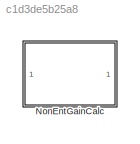
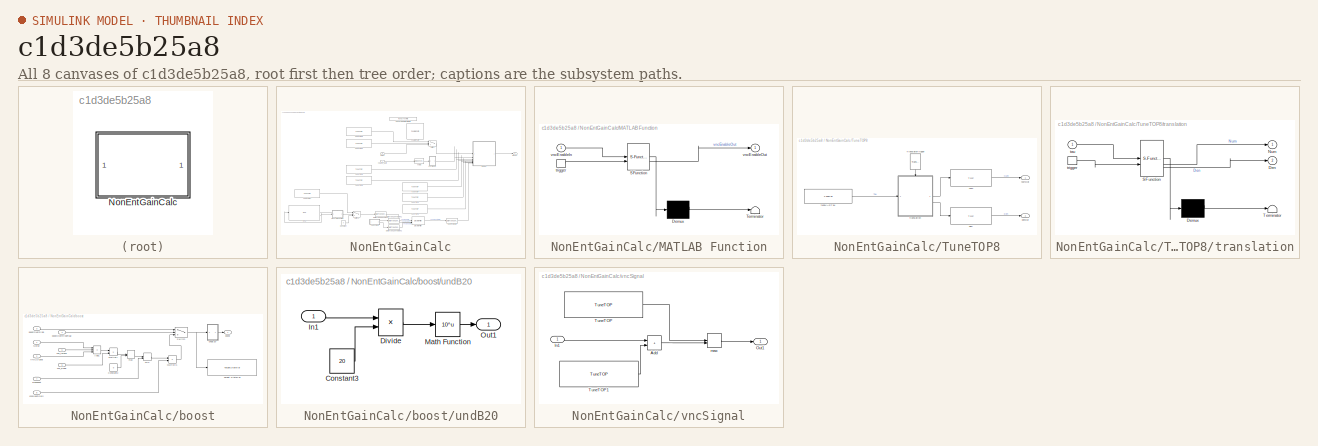
[diagram: thumbnail index - all 8 canvases of the model, root first then tree order]
MODEL slx_c1d3de5b25a8
KIND library
CONFIG AbsTol = auto
CONFIG EnableMultiTasking = off
CONFIG FixedStep = auto
CONFIG MaxStep = auto
CONFIG MinStep = auto
CONFIG RelTol = 1e-3
CONFIG SampleTimeConstraint = Unconstrained
CONFIG SolverName = VariableStepAuto
CONFIG StartTime = 0.0
CONFIG StopTime = 10.0
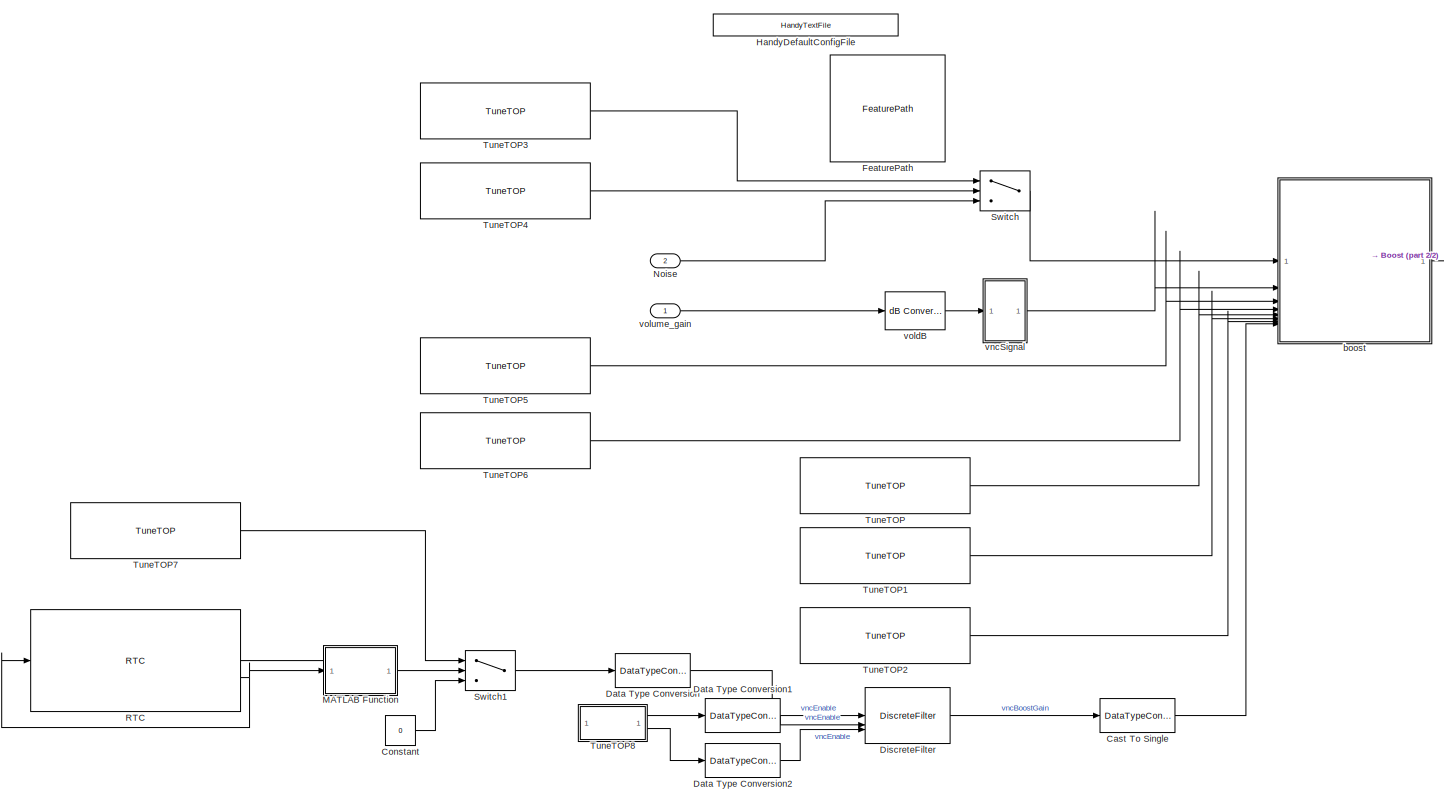
[diagram: NonEntGainCalc - part 1/2, most of the canvas]
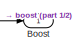
[diagram: NonEntGainCalc - part 2/2, middle right region]
BLOCK [SubSystem] NonEntGainCalc
BLOCK [Outport] NonEntGainCalc/Boost
  VectorParamsAs1DForOutWhenUnconnected = off
BLOCK [DataTypeConversion] NonEntGainCalc/Cast To Single
  OutDataTypeStr = single
  RndMeth = Floor
  SaturateOnIntegerOverflow = off
BLOCK [Constant] NonEntGainCalc/Constant
  Value = 0
BLOCK [DataTypeConversion] NonEntGainCalc/Data Type Conversion
  OutDataTypeStr = double
  RndMeth = Floor
  SaturateOnIntegerOverflow = off
BLOCK [DataTypeConversion] NonEntGainCalc/Data Type Conversion1
  OutDataTypeStr = double
  RndMeth = Floor
  SaturateOnIntegerOverflow = off
BLOCK [DataTypeConversion] NonEntGainCalc/Data Type Conversion2
  OutDataTypeStr = double
  RndMeth = Floor
  SaturateOnIntegerOverflow = off
BLOCK [DiscreteFilter] NonEntGainCalc/DiscreteFilter
  Denominator = [1 -(Config.RampCoef)]
  DenominatorSource = Input port
  FilterStructure = Direct form II transposed
  InputPortMap = u0,p1,p3
  InputProcessing = Columns as channels (frame based)
  Numerator = (1-Config.RampCoef)
  NumeratorSource = Input port
  a0EqualsOne = on
BLOCK [Reference] NonEntGainCalc/FeaturePath  REF=FeaturePath/FeaturePath
  SourceBlock = FeaturePath/FeaturePath
  SourceProductName = Bose Talaria
  SourceType = Talaria Feature Path
BLOCK [Reference] NonEntGainCalc/HandyDefaultConfigFile  REF=HandyTextFile/HandyTextFile
  SourceBlock = HandyTextFile/HandyTextFile
  SourceProductName = Bose Talaria
  SourceType = Talaria Handy Text File
BLOCK [SubSystem] NonEntGainCalc/MATLAB Function
  ErrorFcn = Stateflow.Translate.translate
  PermitHierarchicalResolution = ExplicitOnly
  SFBlockType = MATLAB Function
  TreatAsAtomicUnit = on
BLOCK [Demux] NonEntGainCalc/MATLAB Function/ Demux 
  Outputs = 1
BLOCK [S-Function] NonEntGainCalc/MATLAB Function/ SFunction 
  EnableBusSupport = off
  FunctionName = sf_sfun
  PortCounts = [2 2]
  SFcnIsStateOwnerBlock = off
  SFunctionDeploymentMode = off
  Tag = Stateflow S-Function 2
BLOCK [Terminator] NonEntGainCalc/MATLAB Function/ Terminator 
BLOCK [TriggerPort] NonEntGainCalc/MATLAB Function/trigger
  ShowOutputPort = on
  StatesWhenEnabling = held
  TriggerType = function-call
  VariantControl = (inherit)
BLOCK [Inport] NonEntGainCalc/MATLAB Function/vncEnableIn
BLOCK [Outport] NonEntGainCalc/MATLAB Function/vncEnableOut
BLOCK [Inport] NonEntGainCalc/Noise
  Port = 2
BLOCK [Reference] NonEntGainCalc/RTC  REF=RTC/RTC
  SourceBlock = RTC/RTC
  SourceProductName = Bose Talaria
  SourceType = Talaria RTC Receive
BLOCK [Switch] NonEntGainCalc/Switch
  Criteria = u2 > Threshold
  InputSameDT = off
  SaturateOnIntegerOverflow = off
BLOCK [Switch] NonEntGainCalc/Switch1
  Criteria = u2 > Threshold
  InputSameDT = off
  SaturateOnIntegerOverflow = off
BLOCK [Reference] NonEntGainCalc/TuneTOP  REF=TuneVar/TuneTOP
  SourceBlock = TuneVar/TuneTOP
  SourceProductName = Bose Talaria
  SourceType = Talaria Trivial Tune TOP
BLOCK [Reference] NonEntGainCalc/TuneTOP1  REF=TuneVar/TuneTOP
  SourceBlock = TuneVar/TuneTOP
  SourceProductName = Bose Talaria
  SourceType = Talaria Trivial Tune TOP
BLOCK [Reference] NonEntGainCalc/TuneTOP2  REF=TuneVar/TuneTOP
  SourceBlock = TuneVar/TuneTOP
  SourceProductName = Bose Talaria
  SourceType = Talaria Trivial Tune TOP
BLOCK [Reference] NonEntGainCalc/TuneTOP3  REF=TuneVar/TuneTOP
  SourceBlock = TuneVar/TuneTOP
  SourceProductName = Bose Talaria
  SourceType = Talaria Trivial Tune TOP
BLOCK [Reference] NonEntGainCalc/TuneTOP4  REF=TuneVar/TuneTOP
  SourceBlock = TuneVar/TuneTOP
  SourceProductName = Bose Talaria
  SourceType = Talaria Trivial Tune TOP
BLOCK [Reference] NonEntGainCalc/TuneTOP5  REF=TuneVar/TuneTOP
  SourceBlock = TuneVar/TuneTOP
  SourceProductName = Bose Talaria
  SourceType = Talaria Trivial Tune TOP
BLOCK [Reference] NonEntGainCalc/TuneTOP6  REF=TuneVar/TuneTOP
  SourceBlock = TuneVar/TuneTOP
  SourceProductName = Bose Talaria
  SourceType = Talaria Trivial Tune TOP
BLOCK [Reference] NonEntGainCalc/TuneTOP7  REF=TuneVar/TuneTOP
  SourceBlock = TuneVar/TuneTOP
  SourceProductName = Bose Talaria
  SourceType = Talaria Trivial Tune TOP
BLOCK [SubSystem] NonEntGainCalc/TuneTOP8
BLOCK [Reference] NonEntGainCalc/TuneTOP8/TranslateTrigger  REF=TuneVar/TranslateTrigger
  NameLocation = left
  SourceBlock = TuneVar/TranslateTrigger
  SourceProductName = Bose Talaria
  SourceType = Talaria Translate Trigger
BLOCK [Reference] NonEntGainCalc/TuneTOP8/den  REF=TOP/TOP
  SourceBlock = TOP/TOP
  SourceProductName = Bose Talaria
  SourceType = Talaria Target Overlay Parameter
BLOCK [Outport] NonEntGainCalc/TuneTOP8/denOut
  Port = 2
  VectorParamsAs1DForOutWhenUnconnected = off
BLOCK [Reference] NonEntGainCalc/TuneTOP8/num  REF=TOP/TOP
  SourceBlock = TOP/TOP
  SourceProductName = Bose Talaria
  SourceType = Talaria Target Overlay Parameter
BLOCK [Outport] NonEntGainCalc/TuneTOP8/numOut
  VectorParamsAs1DForOutWhenUnconnected = off
BLOCK [SubSystem] NonEntGainCalc/TuneTOP8/translation
  ErrorFcn = Stateflow.Translate.translate
  PermitHierarchicalResolution = ExplicitOnly
  SFBlockType = MATLAB Function
  TreatAsAtomicUnit = on
BLOCK [Demux] NonEntGainCalc/TuneTOP8/translation/ Demux 
  Outputs = 1
BLOCK [S-Function] NonEntGainCalc/TuneTOP8/translation/ SFunction 
  EnableBusSupport = off
  FunctionName = sf_sfun
  Parameters = Fd
  PortCounts = [2 3]
  SFcnIsStateOwnerBlock = off
  SFunctionDeploymentMode = off
  Tag = Stateflow S-Function 8
BLOCK [Terminator] NonEntGainCalc/TuneTOP8/translation/ Terminator 
BLOCK [Outport] NonEntGainCalc/TuneTOP8/translation/Den
  Port = 2
BLOCK [Outport] NonEntGainCalc/TuneTOP8/translation/Num
  VectorParamsAs1DForOutWhenUnconnected = off
BLOCK [Inport] NonEntGainCalc/TuneTOP8/translation/tau
BLOCK [TriggerPort] NonEntGainCalc/TuneTOP8/translation/trigger
  ShowOutputPort = on
  StatesWhenEnabling = held
  TriggerType = function-call
  VariantControl = Variant
BLOCK [Reference] NonEntGainCalc/TuneTOP8/tuneVARTau  REF=TuneVar/TuneVar
  SourceBlock = TuneVar/TuneVar
  SourceProductName = Bose Talaria
  SourceType = Talaria Tune Variable
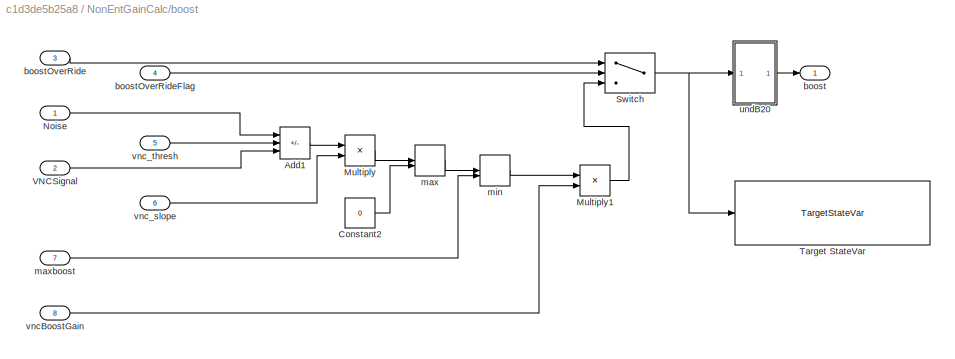
BLOCK [SubSystem] NonEntGainCalc/boost
BLOCK [Sum] NonEntGainCalc/boost/Add1
  IconShape = rectangular
  Inputs = ++-
BLOCK [Constant] NonEntGainCalc/boost/Constant2
  OutDataTypeStr = single
  Value = 0
BLOCK [Product] NonEntGainCalc/boost/Multiply
BLOCK [Product] NonEntGainCalc/boost/Multiply1
BLOCK [Inport] NonEntGainCalc/boost/Noise
BLOCK [Switch] NonEntGainCalc/boost/Switch
  Criteria = u2 > Threshold
  InputSameDT = off
  SaturateOnIntegerOverflow = off
BLOCK [Reference] NonEntGainCalc/boost/Target StateVar  REF=StateVar/TargetStateVar
  SourceBlock = StateVar/TargetStateVar
  SourceProductName = Bose Talaria
  SourceType = Talaria Target State Variable
BLOCK [Inport] NonEntGainCalc/boost/VNCSignal
  Port = 2
BLOCK [Outport] NonEntGainCalc/boost/boost
  VectorParamsAs1DForOutWhenUnconnected = off
BLOCK [Inport] NonEntGainCalc/boost/boostOverRide
  Port = 3
BLOCK [Inport] NonEntGainCalc/boost/boostOverRideFlag
  Port = 4
BLOCK [MinMax] NonEntGainCalc/boost/max
  Function = max
  Inputs = 2
BLOCK [Inport] NonEntGainCalc/boost/maxboost
  Port = 7
BLOCK [MinMax] NonEntGainCalc/boost/min
  Inputs = 2
BLOCK [SubSystem] NonEntGainCalc/boost/undB20
BLOCK [Constant] NonEntGainCalc/boost/undB20/Constant3
  OutDataTypeStr = single
  Value = 20
BLOCK [Product] NonEntGainCalc/boost/undB20/Divide
  Inputs = */
BLOCK [Inport] NonEntGainCalc/boost/undB20/In1
BLOCK [Math] NonEntGainCalc/boost/undB20/Math Function
  Operator = 10^u
  SignedPower = on
BLOCK [Outport] NonEntGainCalc/boost/undB20/Out1
  VectorParamsAs1DForOutWhenUnconnected = off
BLOCK [Inport] NonEntGainCalc/boost/vncBoostGain
  Port = 8
BLOCK [Inport] NonEntGainCalc/boost/vnc_slope
  Port = 6
BLOCK [Inport] NonEntGainCalc/boost/vnc_thresh
  Port = 5
BLOCK [SubSystem] NonEntGainCalc/vncSignal
BLOCK [Sum] NonEntGainCalc/vncSignal/Add
  IconShape = rectangular
BLOCK [Inport] NonEntGainCalc/vncSignal/In1
BLOCK [Outport] NonEntGainCalc/vncSignal/Out1
  VectorParamsAs1DForOutWhenUnconnected = off
BLOCK [Reference] NonEntGainCalc/vncSignal/TuneTOP  REF=TuneVar/TuneTOP
  SourceBlock = TuneVar/TuneTOP
  SourceProductName = Bose Talaria
  SourceType = Talaria Trivial Tune TOP
BLOCK [Reference] NonEntGainCalc/vncSignal/TuneTOP1  REF=TuneVar/TuneTOP
  SourceBlock = TuneVar/TuneTOP
  SourceProductName = Bose Talaria
  SourceType = Talaria Trivial Tune TOP
BLOCK [MinMax] NonEntGainCalc/vncSignal/max
  Function = max
  Inputs = 2
BLOCK [Reference] NonEntGainCalc/voldB  REF=dspmathops/dB Conversion
  SourceBlock = dspmathops/dB Conversion
  SourceType = dB Conversion
BLOCK [Inport] NonEntGainCalc/volume_gain
CHART NonEntGainCalc/MATLAB Function states=1 transitions=1
  STATE_LABEL 'eML_blk_kernel()'
  STATE_LABEL 'SCRIPT:\nfunction vncEnableOut = fcn(vncEnableIn)\n%\n%Trivial translation\n%\nvncEnableOut = vncEnableIn;\n'
CHART NonEntGainCalc/TuneTOP8/translation states=1 transitions=1
  STATE_LABEL 'eML_blk_kernel()'
  STATE_LABEL 'SCRIPT:\nfunction [Num, Den]  = fcn(tau, Fd)\n%\n% Calculate coefficients for single pole LPF\n%\n\nWc      = 1/(tau.Value*Fd);\nsinCoef = sin(Wc);\ncosCoef = cos(Wc);\ncoef    = (1-sinCoef)/cosCoef;\n\nNum = double([1-coef 0]);\nDen =  double([1 -(coef)]);'
CHART  states=0 transitions=0
CHART  states=0 transitions=0
